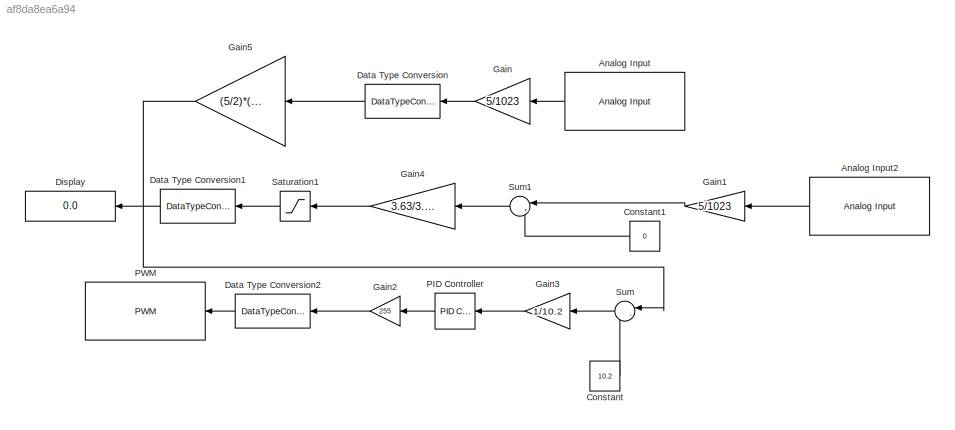
MODEL slx_af8da8ea6a94
KIND model
CONFIG AbsTol = auto
CONFIG EnableMultiTasking = off
CONFIG FixedStep = auto
CONFIG MaxStep = auto
CONFIG MinStep = auto
CONFIG RelTol = 1e-3
CONFIG SampleTimeConstraint = Unconstrained
CONFIG Solver = VariableStepAuto
CONFIG SolverName = VariableStepAuto
CONFIG StartTime = 0.0
CONFIG StopTime = 10.0
BLOCK [Reference] Analog Input  REF=arduinolib/Analog Input
  Ports = [0, 1]
  SourceBlock = arduinolib/Analog Input
  SourceProductBaseCode = ARDUINO
  SourceType = Arduino Analog Input
BLOCK [Reference] Analog Input2  REF=arduinolib/Analog Input
  Ports = [0, 1]
  SourceBlock = arduinolib/Analog Input
  SourceProductBaseCode = ARDUINO
  SourceType = Arduino Analog Input
BLOCK [Constant] Constant
  Value = 10.2
BLOCK [Constant] Constant1
  Value = 0
BLOCK [DataTypeConversion] Data Type Conversion
  OutDataTypeStr = double
  RndMeth = Floor
  SaturateOnIntegerOverflow = off
BLOCK [DataTypeConversion] Data Type Conversion1
  OutDataTypeStr = double
  RndMeth = Floor
  SaturateOnIntegerOverflow = off
BLOCK [DataTypeConversion] Data Type Conversion2
  OutDataTypeStr = int16
  RndMeth = Floor
  SaturateOnIntegerOverflow = off
BLOCK [Display] Display
  Decimation = 1
  Ports = [1]
BLOCK [Gain] Gain
  Gain = 5/1023
BLOCK [Gain] Gain1
  Gain = 5/1023
BLOCK [Gain] Gain2
  Gain = 255
BLOCK [Gain] Gain3
  Gain = 1/10.2
BLOCK [Gain] Gain4
  Gain = 3.63/3.519
BLOCK [Gain] Gain5
  Gain = (5/2)*(9.99/9.836)
BLOCK [Reference] PID Controller  REF=simulink/Continuous/PID Controller
  Ports = [1, 1]
  SourceBlock = simulink/Continuous/PID Controller
  SourceProductBaseCode = SL
  SourceType = PID 1dof
BLOCK [Reference] PWM  REF=arduinolib/PWM
  Ports = [1]
  SourceBlock = arduinolib/PWM
  SourceProductBaseCode = ARDUINO
  SourceType = Arduino PWM
BLOCK [Saturate] Saturation1
  LowerLimit = 0
BLOCK [Sum] Sum
  Inputs = |-+
  Ports = [2, 1]
BLOCK [Sum] Sum1
  Inputs = |+-
  Ports = [2, 1]
LINE Analog Input2:1 -> Gain1:1
LINE Analog Input:1 -> Gain:1
LINE Constant1:1 -> Sum1:2
LINE Constant:1 -> Sum:2
LINE Data Type Conversion1:1 -> Display:1
LINE Data Type Conversion2:1 -> PWM:1
LINE Data Type Conversion:1 -> Gain5:1
LINE Gain1:1 -> Sum1:1
LINE Gain2:1 -> Data Type Conversion2:1
LINE Gain3:1 -> PID Controller:1
LINE Gain4:1 -> Saturation1:1
LINE Gain5:1 -> Sum:1
LINE Gain:1 -> Data Type Conversion:1
LINE PID Controller:1 -> Gain2:1
LINE Saturation1:1 -> Data Type Conversion1:1
LINE Sum1:1 -> Gain4:1
LINE Sum:1 -> Gain3:1
